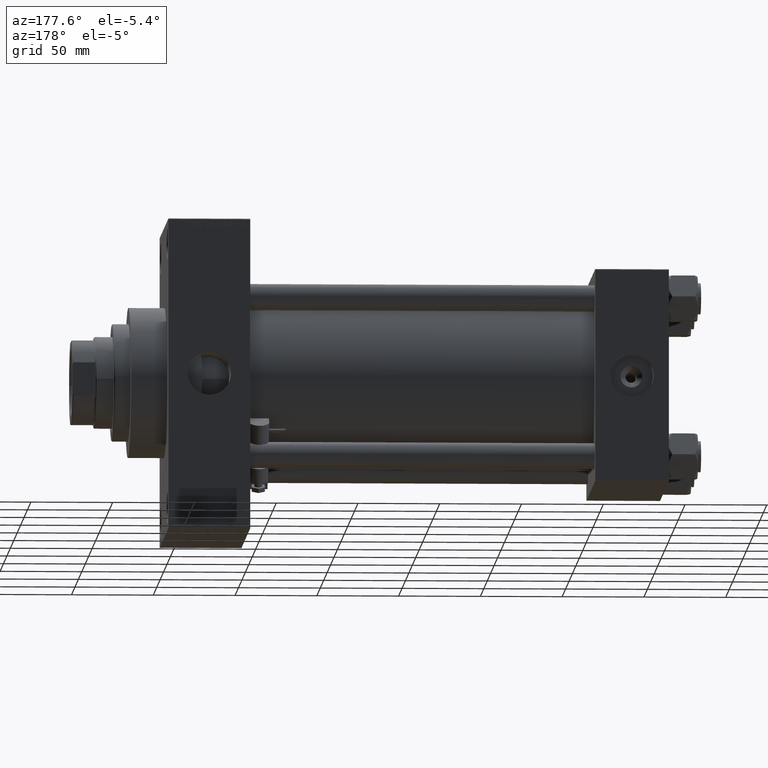
[diagram: clean part render]
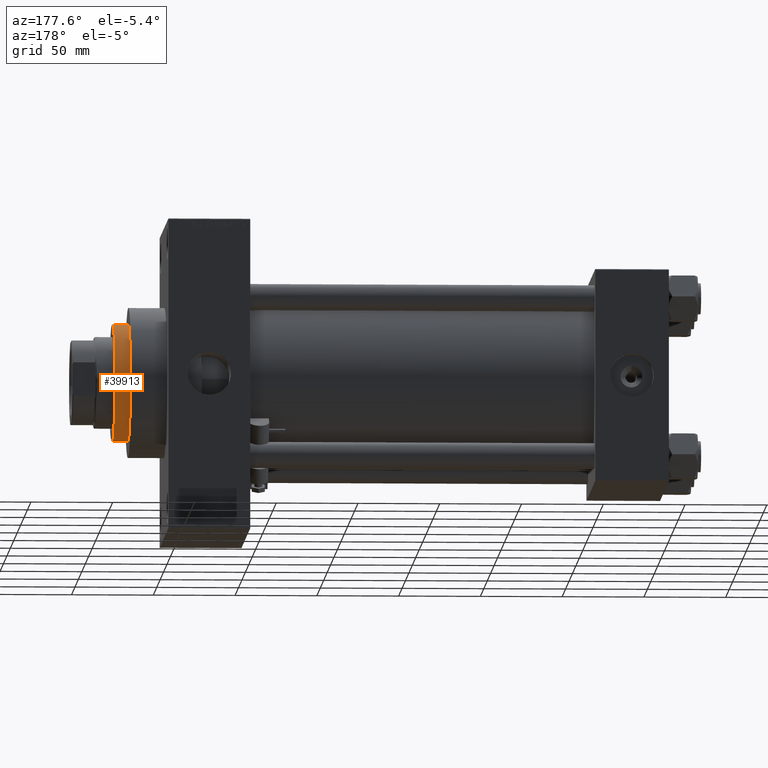
[diagram: same view with one face highlighted and labeled with its STEP entity id]
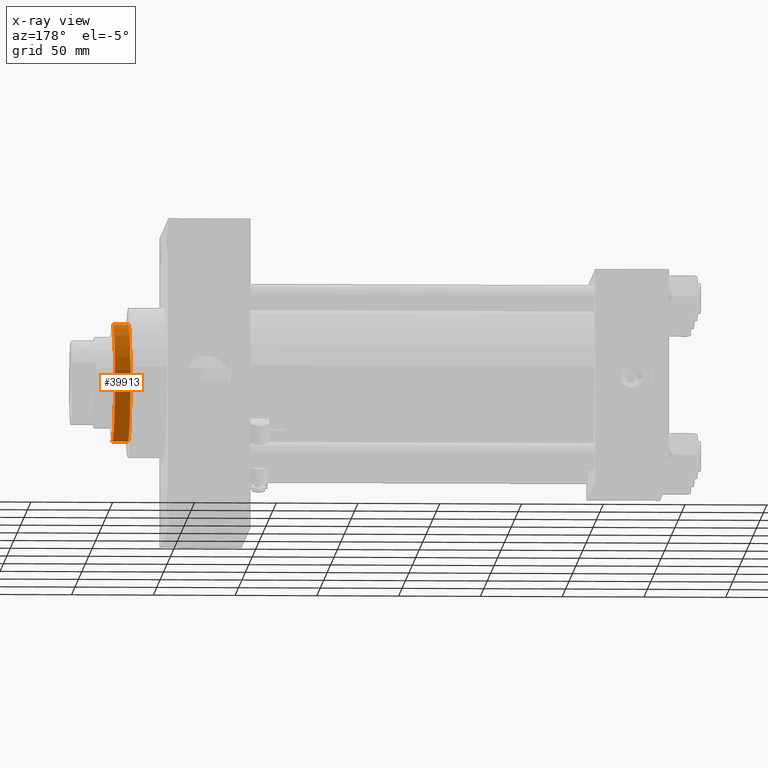
[diagram: x-ray of the same camera — body ghosted, the highlighted face saturated]
A machine part, auxiliary view. The second image highlights one B-rep face of the part: STEP entity #39913.
The next image is the same camera in x-ray: the body ghosted, the highlighted face saturated — about 0% of this face is hidden behind the body in this view.
In plain terms, the highlighted cylindrical surface (partial cylindrical patch) has radius 36 mm, axis along (-1, 0, 0).
Its self-contained STEP definition (entity closure, byte-faithful):
#584 = VERTEX_POINT ( 'NONE', #7961 ) ;
#745 = CARTESIAN_POINT ( 'NONE',  ( -36.00000000000000000, 0.000000000000000000, 53.26000000000000512 ) ) ;
#804 = EDGE_CURVE ( 'NONE', #20415, #21605, #22472, .T. ) ;
#1819 = CARTESIAN_POINT ( 'NONE',  ( 0.000000000000000000, 0.000000000000000000, 53.26000000000000512 ) ) ;
#2950 = ORIENTED_EDGE ( 'NONE', *, *, #13561, .T. ) ;
#7672 = CARTESIAN_POINT ( 'NONE',  ( 36.00000000000000000, 4.408728476930470856E-15, 53.26000000000000512 ) ) ;
#7961 = CARTESIAN_POINT ( 'NONE',  ( 36.00000000000000000, 4.408728476930470856E-15, 43.25999999999999801 ) ) ;
#10895 = DIRECTION ( 'NONE',  ( 0.000000000000000000, 0.000000000000000000, -1.000000000000000000 ) ) ;
#11042 = EDGE_CURVE ( 'NONE', #48414, #20415, #36121, .T. ) ;
#11077 = ORIENTED_EDGE ( 'NONE', *, *, #804, .T. ) ;
#11116 = CARTESIAN_POINT ( 'NONE',  ( 0.000000000000000000, 0.000000000000000000, 43.25999999999999801 ) ) ;
#11790 = CARTESIAN_POINT ( 'NONE',  ( 36.00000000000000000, 4.408728476930470856E-15, 52.76000000000001933 ) ) ;
#11970 = ORIENTED_EDGE ( 'NONE', *, *, #36544, .F. ) ;
#13173 = CYLINDRICAL_SURFACE ( 'NONE', #22772, 36.00000000000000000 ) ;
#13561 = EDGE_CURVE ( 'NONE', #21605, #584, #40008, .T. ) ;
#16386 = DIRECTION ( 'NONE',  ( -1.000000000000000000, 0.000000000000000000, 0.000000000000000000 ) ) ;
#16724 = EDGE_LOOP ( 'NONE', ( #11970, #43386, #11077, #2950 ) ) ;
#20415 = VERTEX_POINT ( 'NONE', #36011 ) ;
#21135 = AXIS2_PLACEMENT_3D ( 'NONE', #44699, #10895, #37318 ) ;
#21605 = VERTEX_POINT ( 'NONE', #30302 ) ;
#22472 = LINE ( 'NONE', #745, #33501 ) ;
#22772 = AXIS2_PLACEMENT_3D ( 'NONE', #1819, #43280, #16386 ) ;
#22995 = LINE ( 'NONE', #7672, #47708 ) ;
#26162 = DIRECTION ( 'NONE',  ( 0.000000000000000000, 0.000000000000000000, 1.000000000000000000 ) ) ;
#27736 = FACE_OUTER_BOUND ( 'NONE', #16724, .T. ) ;
#30302 = CARTESIAN_POINT ( 'NONE',  ( -36.00000000000000000, 0.000000000000000000, 43.25999999999999801 ) ) ;
#33501 = VECTOR ( 'NONE', #45654, 1000.000000000000000 ) ;
#33864 = DIRECTION ( 'NONE',  ( -0.000000000000000000, -0.000000000000000000, -1.000000000000000000 ) ) ;
#36011 = CARTESIAN_POINT ( 'NONE',  ( -36.00000000000000000, 0.000000000000000000, 52.76000000000001933 ) ) ;
#36121 = CIRCLE ( 'NONE', #21135, 36.00000000000000000 ) ;
#36544 = EDGE_CURVE ( 'NONE', #48414, #584, #22995, .T. ) ;
#36850 = AXIS2_PLACEMENT_3D ( 'NONE', #11116, #26162, #41216 ) ;
#37318 = DIRECTION ( 'NONE',  ( 1.000000000000000000, 0.000000000000000000, 0.000000000000000000 ) ) ;
#39913 = ADVANCED_FACE ( 'NONE', ( #27736 ), #13173, .T. ) ;
#40008 = CIRCLE ( 'NONE', #36850, 36.00000000000000000 ) ;
#41216 = DIRECTION ( 'NONE',  ( 1.000000000000000000, 0.000000000000000000, 0.000000000000000000 ) ) ;
#43280 = DIRECTION ( 'NONE',  ( -0.000000000000000000, -0.000000000000000000, -1.000000000000000000 ) ) ;
#43386 = ORIENTED_EDGE ( 'NONE', *, *, #11042, .T. ) ;
#44699 = CARTESIAN_POINT ( 'NONE',  ( 0.000000000000000000, 0.000000000000000000, 52.76000000000001933 ) ) ;
#45654 = DIRECTION ( 'NONE',  ( -0.000000000000000000, -0.000000000000000000, -1.000000000000000000 ) ) ;
#47708 = VECTOR ( 'NONE', #33864, 1000.000000000000000 ) ;
#48414 = VERTEX_POINT ( 'NONE', #11790 ) ;